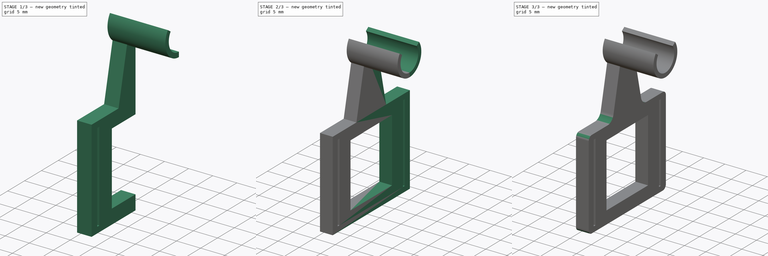
[diagram: build sequence overview — one tinted view per stage of 3, left to right]
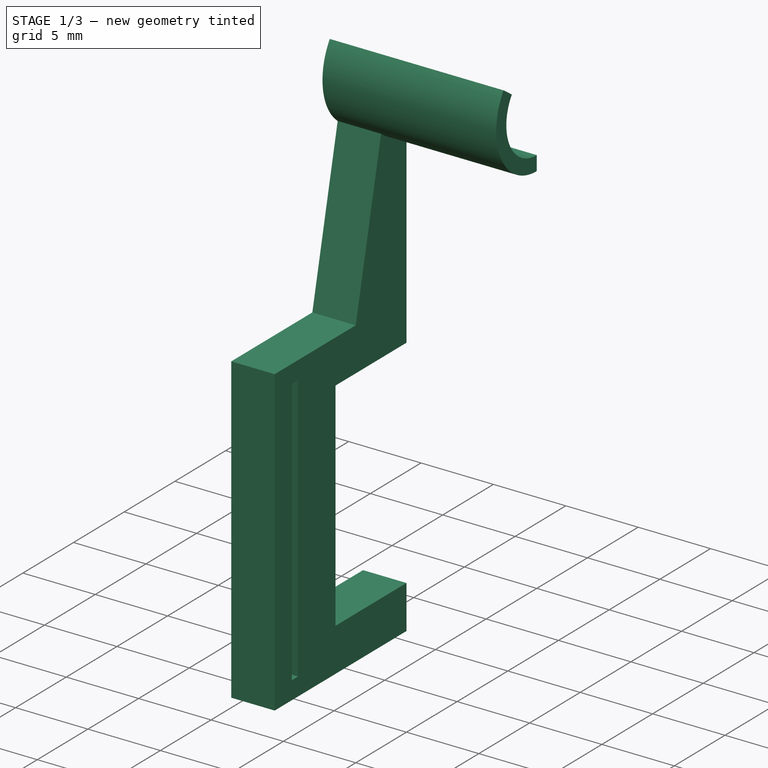
[diagram: stage 1 of 3 — iso view after this stage's code; geometry added in this stage tinted green]
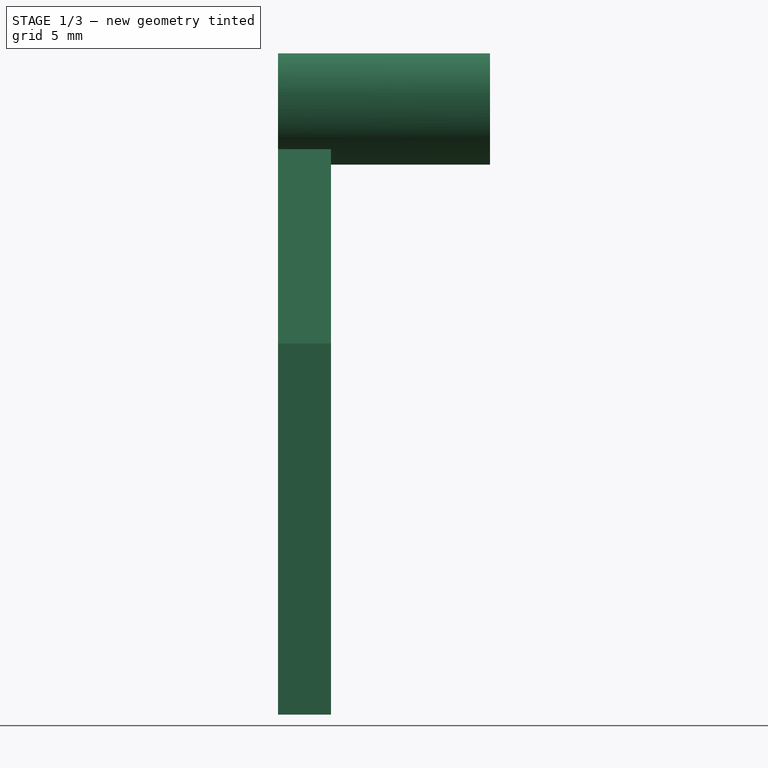
[diagram: stage 1 of 3 — front view after this stage's code; geometry added in this stage tinted green]
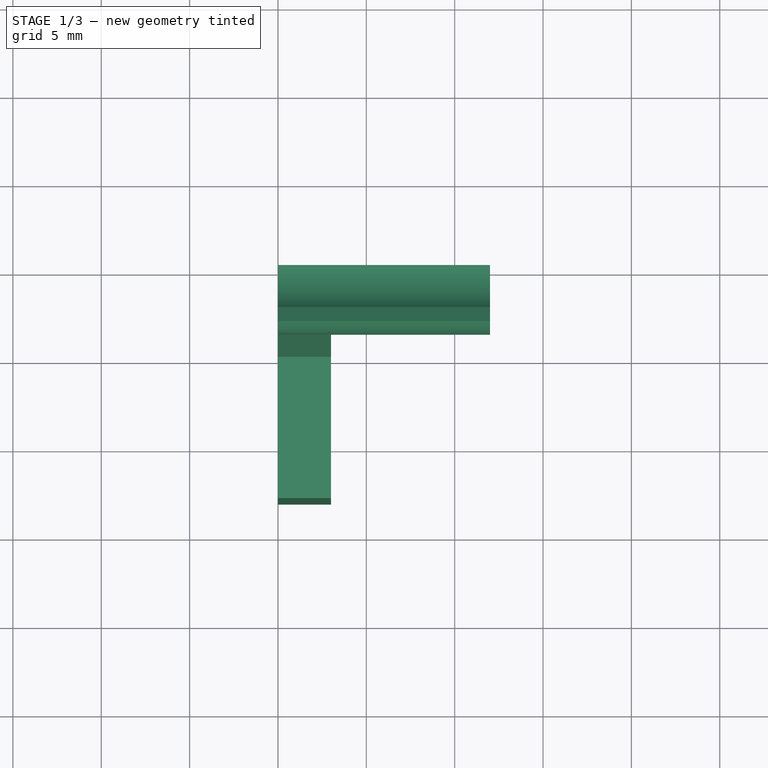
[diagram: stage 1 of 3 — top view after this stage's code; geometry added in this stage tinted green]
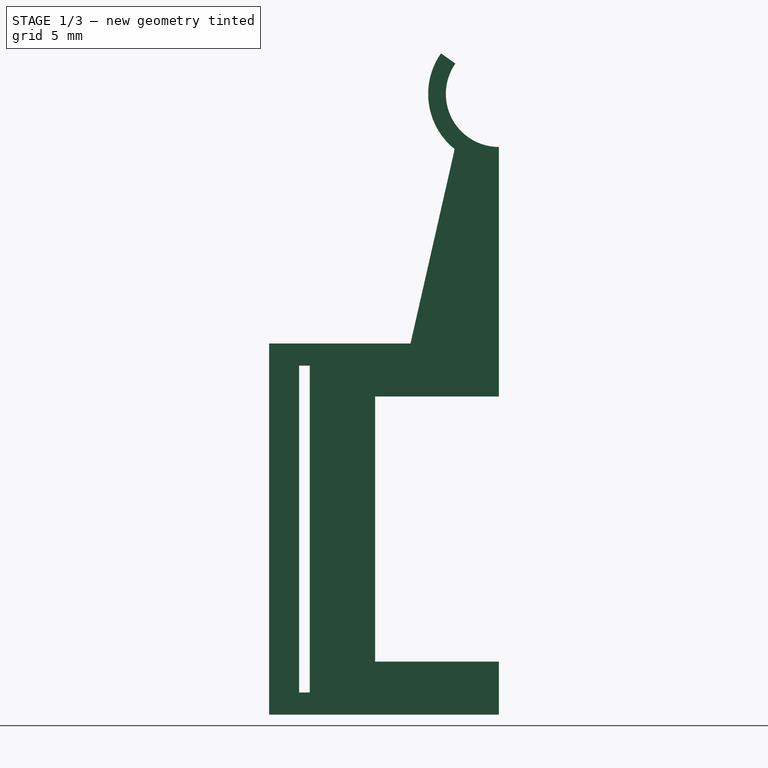
[diagram: stage 1 of 3 — right view after this stage's code; geometry added in this stage tinted green]
FCSTD DOCUMENT  (FreeCAD 1.0R38641 +678 (Git))
Label: Disco_deck
License: All rights reserved
LicenseURL: https://en.wikipedia.org/wiki/All_rights_reserved
objects: Sketcher::SketchObject×2, PartDesign::Pad×2, PartDesign::Fillet×2, PartDesign::Mirrored×1, PartDesign::Body×1
note: 19 computed .brp shape members not serialized (recipe doc carries the construction recipe); baked Part::Feature solids carry a one-line shape summary decoded from their .brp

FEATURE [Sketcher::SketchObject] Sketch001
  ArcFitTolerance = 1e-06
  AttachmentSupport = -> [YZ_Plane001]
  FullyConstrained = true
  MakeInternals = false
  MapMode = 5
  Placement = pos=(0,0,0) rot=(0.57735,0.57735,0.57735;2.0944rad)
  sketch-geometry (14):
    g0: LineSegment StartX=-13 StartY=10.5 StartZ=0 EndX=-13 EndY=-10.5 EndZ=0
    g1: LineSegment StartX=-13 StartY=-10.5 StartZ=0 EndX=0 EndY=-10.5 EndZ=0
    g2: LineSegment StartX=-5 StartY=10.5 StartZ=0 EndX=-13 EndY=10.5 EndZ=0
    g3: LineSegment StartX=-11.3 StartY=9.25 StartZ=0 EndX=-11.3 EndY=-9.25 EndZ=0
    g4: LineSegment StartX=-11.3 StartY=-9.25 StartZ=0 EndX=-10.7 EndY=-9.25 EndZ=0
    g5: LineSegment StartX=-10.7 StartY=-9.25 StartZ=0 EndX=-10.7 EndY=9.25 EndZ=0
    g6: LineSegment StartX=-10.7 StartY=9.25 StartZ=0 EndX=-11.3 EndY=9.25 EndZ=0
    g7: LineSegment StartX=0 StartY=7.5 StartZ=0 EndX=-7 EndY=7.5 EndZ=0
    g8: LineSegment StartX=-7 StartY=7.5 StartZ=0 EndX=-7 EndY=-7.5 EndZ=0
    g9: LineSegment StartX=-7 StartY=-7.5 StartZ=0 EndX=0 EndY=-7.5 EndZ=0
    g10: LineSegment StartX=-5 StartY=10.5 StartZ=0 EndX=-2.5 EndY=21.5 EndZ=0
    g11: LineSegment StartX=0 StartY=-7.5 StartZ=0 EndX=0 EndY=-10.5 EndZ=0
    g12: LineSegment StartX=-2.5 StartY=21.5 StartZ=0 EndX=0 EndY=21.5 EndZ=0
    g13: LineSegment StartX=0 StartY=7.5 StartZ=0 EndX=0 EndY=21.5 EndZ=0
  constraints (39):
    c: Coincident(g0,g1)
    c: Coincident(g2,g0)
    c: Horizontal(g1)
    c: DistanceX(g1,g1) = 13
    c: DistanceY(g0,g0) = 21
    c: Coincident(g3,g4)
    c: Coincident(g4,g5)
    c: Coincident(g5,g6)
    c: Coincident(g6,g3)
    c: Horizontal(g4)
    c: Horizontal(g6)
    c: Horizontal(g2)
    c: Distance(g6,g6) = 0.6
    c: DistanceY(g3,g3) = 18.5
    c: DistanceX(g5,g-1) = 10.7
    c: Symmetric(g0,g0,g-1)
    c: Symmetric(g3,g3,g-1)
    c: Vertical(g5)
    c: Coincident(g7,g8)
    c: Coincident(g8,g9)
    c: Horizontal(g7)
    c: Horizontal(g9)
    c: Symmetric(g7,g8,g-1)
    c: DistanceX(g9,g9) = 7
    c: DistanceY(g8,g8) = 15
    c: PointOnObject(g7,g-2)
    c: DistanceY(g0,g10) = 11
    c: Coincident(g2,g10)
    c: Distance(g2,g0) = 8
    c: Coincident(g11,g9)
    c: Coincident(g11,g1)
    c: PointOnObject(g1,g-2)
    c: PointOnObject(g9,g-2)
    c: Coincident(g12,g10)
    c: PointOnObject(g12,g-2)
    c: Horizontal(g12)
    c: Distance(g12,g12) = 2.5
    c: Coincident(g13,g7)
    c: Coincident(g13,g12)
FEATURE [PartDesign::Pad] Pad001
  Direction = (1,0,0)
  Length = 3
  Length2 = 10
  Placement = pos=(0,0,0) rot=(1,1,1;2.0944rad)
  Profile = -> Sketch001
  ReferenceAxis = -> Sketch001 [N_Axis]
  Refine = true
  Suppressed = false
  Type = 0
FEATURE [Sketcher::SketchObject] Sketch002
  ArcFitTolerance = 1e-06
  AttachmentSupport = -> [Pad001]
  ExternalGeometry = -> [Pad001]
  FullyConstrained = true
  MakeInternals = false
  MapMode = 5
  Placement = pos=(3,0,0) rot=(0.57735,0.57735,0.57735;2.0944rad)
  sketch-geometry (4):
    g0: ArcOfCircle CenterX=0 CenterY=24.6225 CenterZ=0 NormalX=0 NormalY=0 NormalZ=1 AngleXU=0 Radius=3 StartAngle=2.53073 EndAngle=4.71239
    g1: ArcOfCircle CenterX=0 CenterY=24.6225 CenterZ=0 NormalX=0 NormalY=0 NormalZ=1 AngleXU=0 Radius=4 StartAngle=2.53073 EndAngle=4.71239
    g2: LineSegment StartX=-2.45746 StartY=26.3432 StartZ=0 EndX=-3.27661 EndY=26.9168 EndZ=0
    g3: LineSegment StartX=-7e-16 StartY=21.6225 StartZ=0 EndX=-7e-16 EndY=20.6225 EndZ=0
  constraints (12):
    c: PointOnObject(g0,g-2)
    c: Diameter(g1) = 8
    c: Coincident(g1,g0)
    c: Diameter(g0) = 6
    c: PointOnObject(g-3,g1)
    c: Vertical(g3)
    c: PointOnObject(g3,g-2)
    c: Angle(g2,g-3) = 0.610865
    c: Coincident(g1,g3)
    c: Coincident(g1,g2)
    c: Coincident(g0,g3)
    c: Perpendicular(g0,g2) = 4.71239
FEATURE [PartDesign::Pad] Pad002
  BaseFeature = -> Pad001
  Direction = (1,0,0)
  Length = 9
  Length2 = 3
  Placement = pos=(0,0,0) rot=(1,1,1;2.0944rad)
  Profile = -> Sketch002
  ReferenceAxis = -> Sketch002 [N_Axis]
  Refine = true
  Suppressed = false
  Type = 4
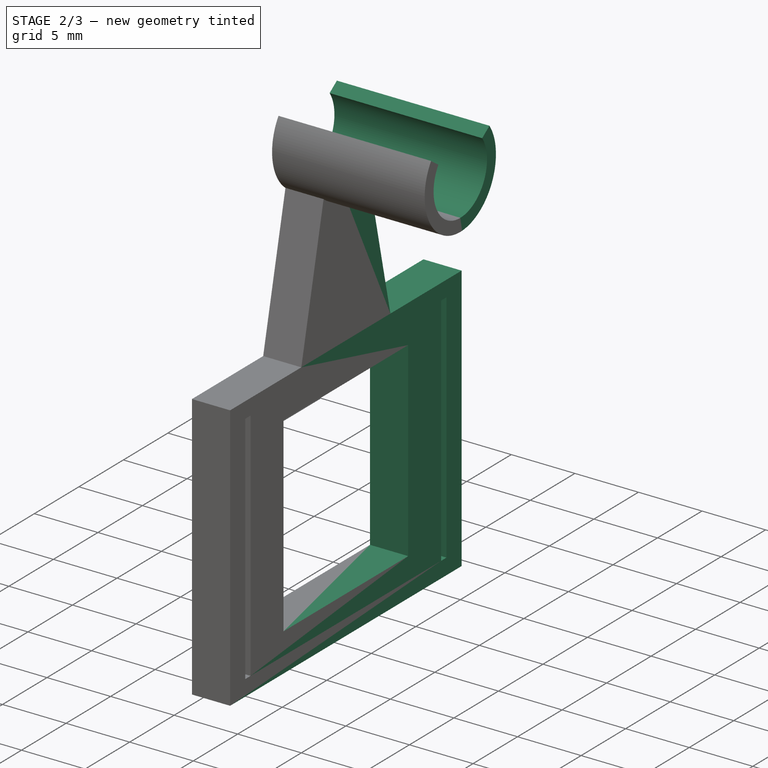
[diagram: stage 2 of 3 — iso view after this stage's code; geometry added in this stage tinted green]
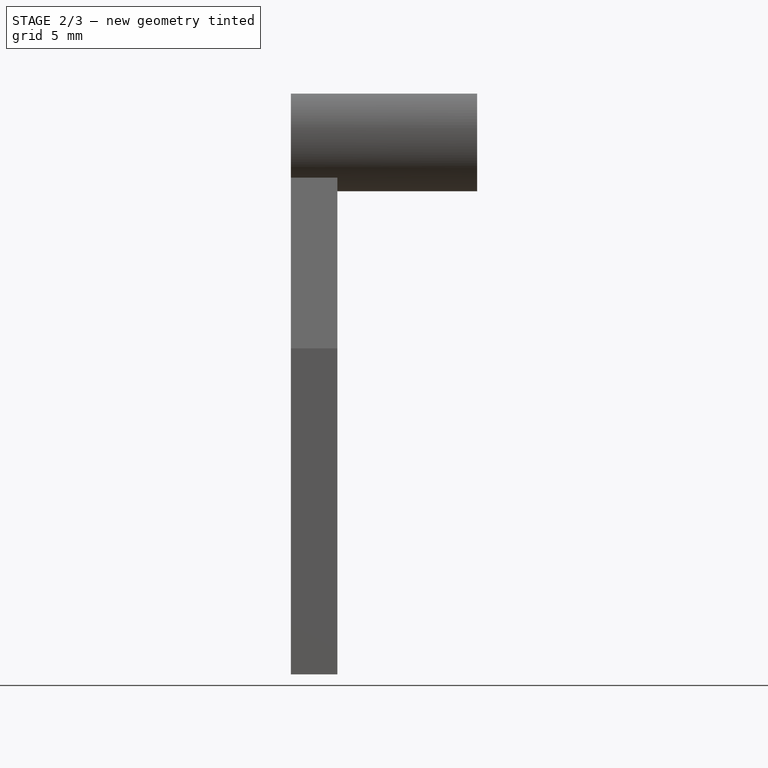
[diagram: stage 2 of 3 — front view after this stage's code; geometry added in this stage tinted green]
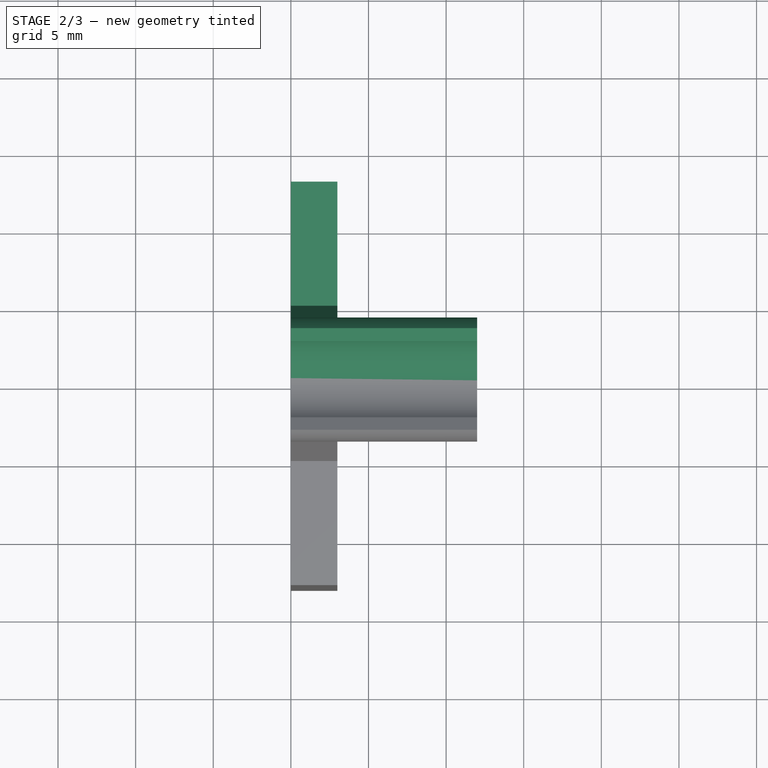
[diagram: stage 2 of 3 — top view after this stage's code; geometry added in this stage tinted green]
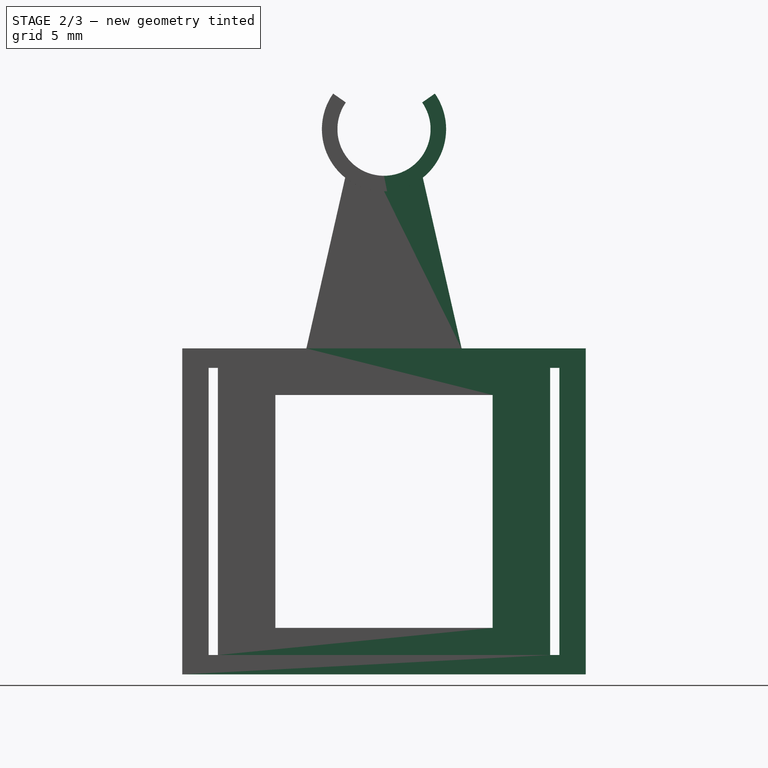
[diagram: stage 2 of 3 — right view after this stage's code; geometry added in this stage tinted green]
FEATURE [PartDesign::Mirrored] Mirrored
  BaseFeature = -> Pad002
  MirrorPlane = -> XZ_Plane001
  Placement = pos=(0,0,0) rot=(1,1,1;2.0944rad)
  Refine = true
  Suppressed = false
  TransformMode = 1
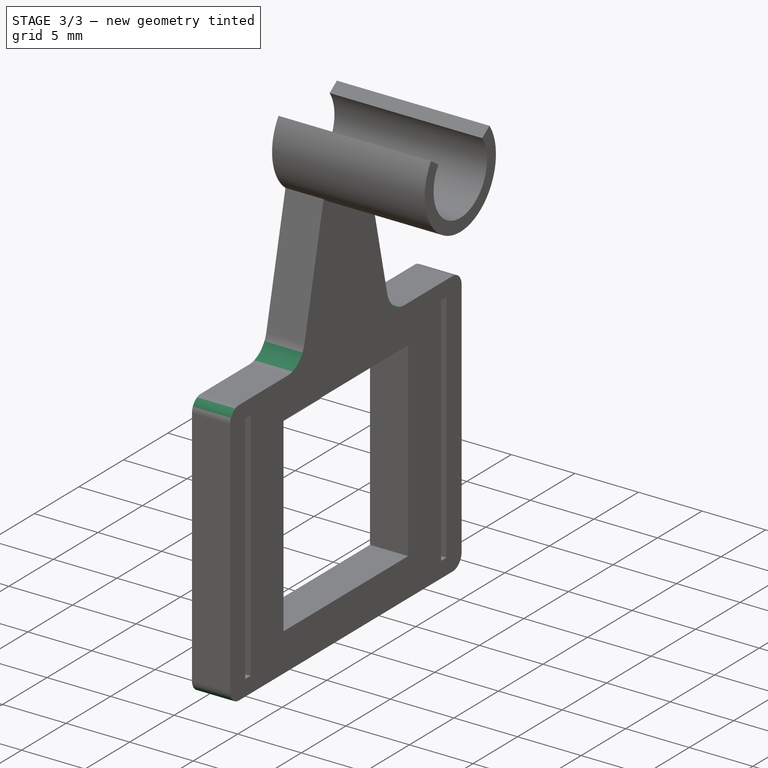
[diagram: stage 3 of 3 — iso view after this stage's code; geometry added in this stage tinted green]
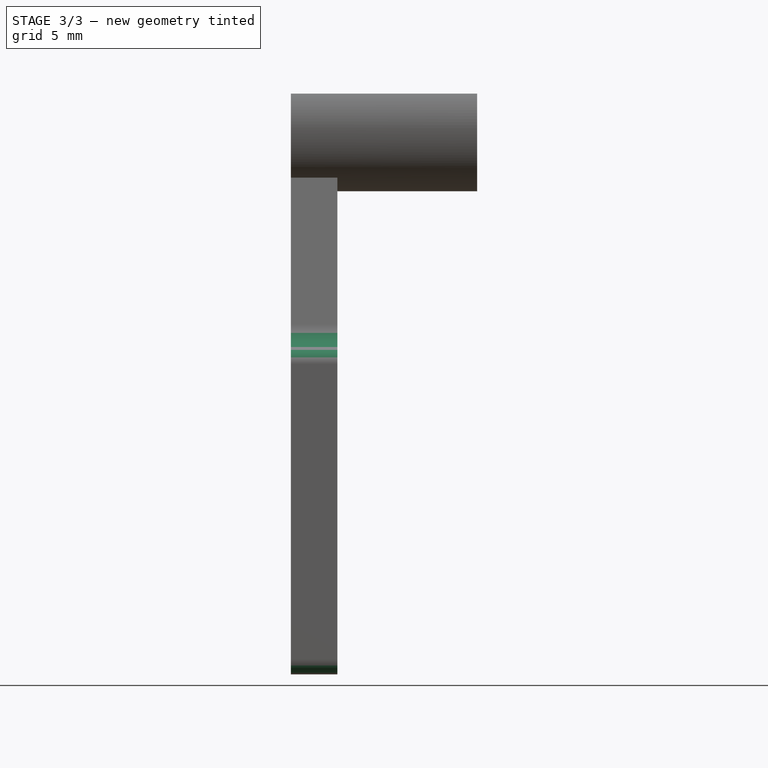
[diagram: stage 3 of 3 — front view after this stage's code; geometry added in this stage tinted green]
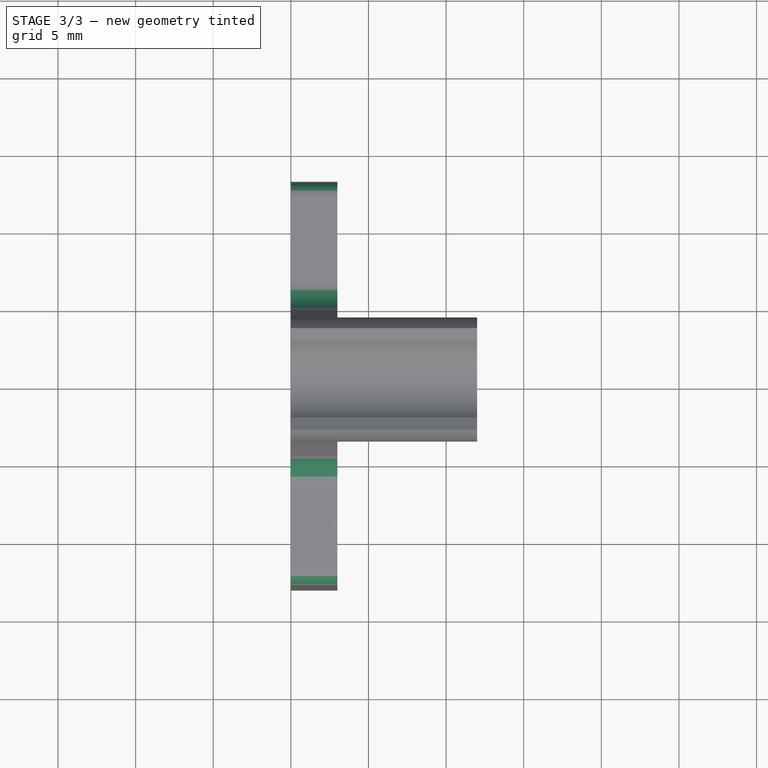
[diagram: stage 3 of 3 — top view after this stage's code; geometry added in this stage tinted green]
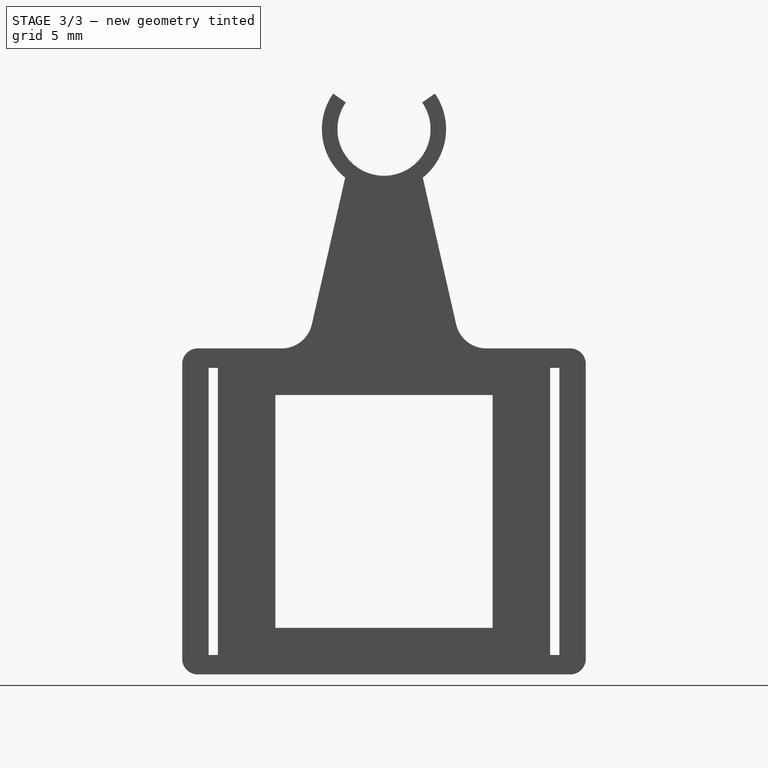
[diagram: stage 3 of 3 — right view after this stage's code; geometry added in this stage tinted green]
FEATURE [PartDesign::Fillet] Fillet
  Base = -> Mirrored [Edge42,Edge44,Edge8,Edge5]
  BaseFeature = -> Mirrored
  Placement = pos=(0,0,0) rot=(1,1,1;2.0944rad)
  Radius = 1
  Refine = true
  SupportTransform = false
  Suppressed = false
  UseAllEdges = false
FEATURE [PartDesign::Fillet] Fillet001
  Base = -> Fillet [Edge3,Edge60]
  BaseFeature = -> Fillet
  Placement = pos=(0,0,0) rot=(1,1,1;2.0944rad)
  Radius = 2
  Refine = true
  SupportTransform = false
  Suppressed = false
  UseAllEdges = false
FEATURE [PartDesign::Body] Body001  label="Body"
  AllowCompound = false
  Group = -> [Sketch001,Pad001,Sketch002,Pad002,Mirrored,Fillet,Fillet001]
  Origin = -> Origin001
  Tip = -> Fillet001
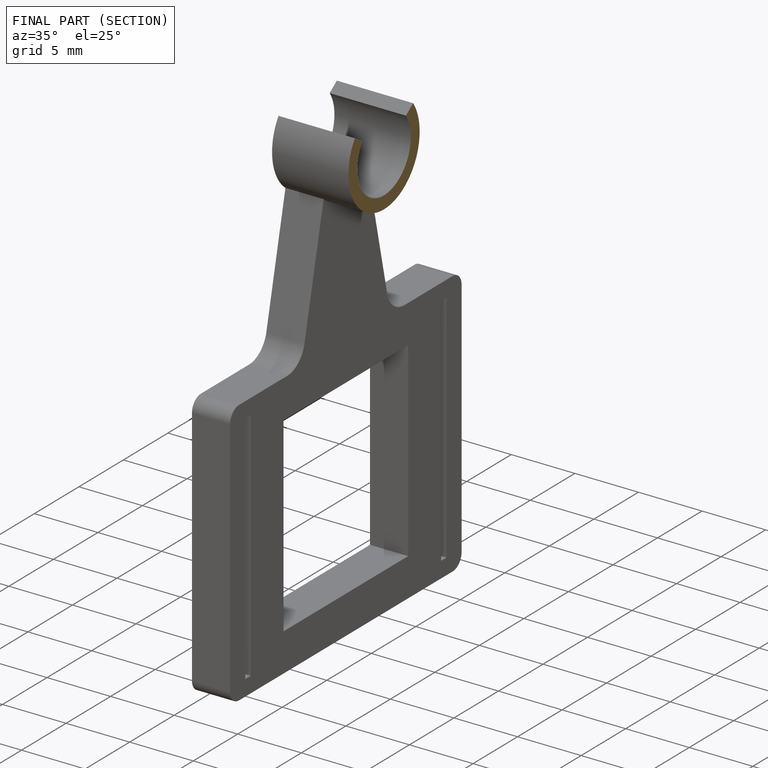
[diagram: finished part — half-section view (interior)]
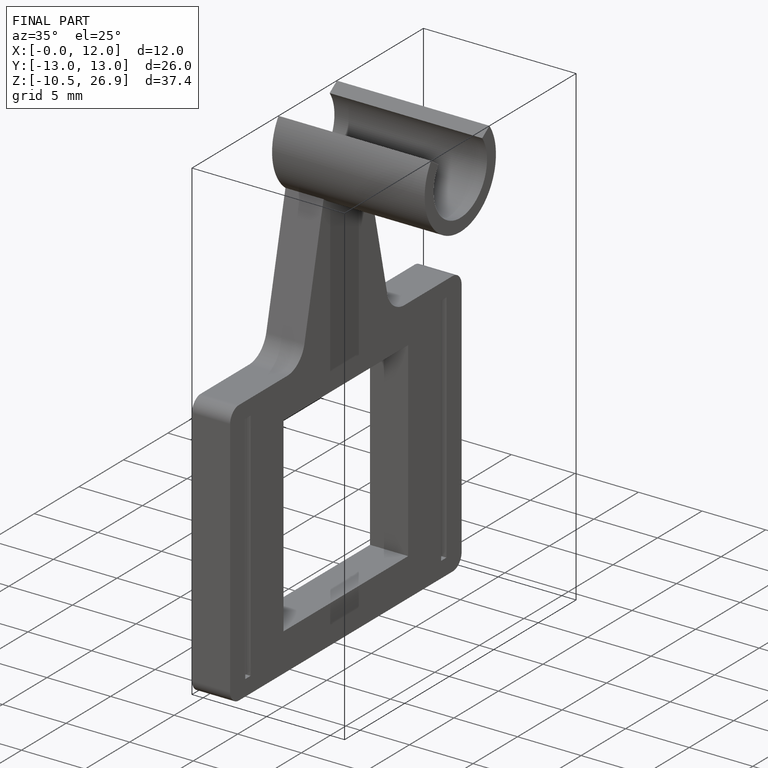
[diagram: finished part — iso view with bounding-box wireframe]
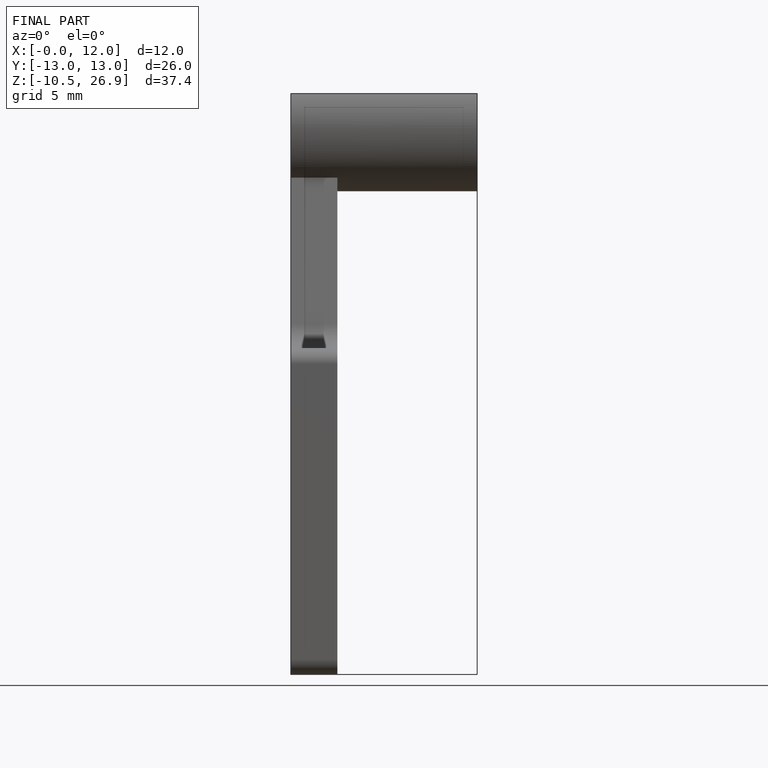
[diagram: finished part — front view with bounding-box wireframe]
